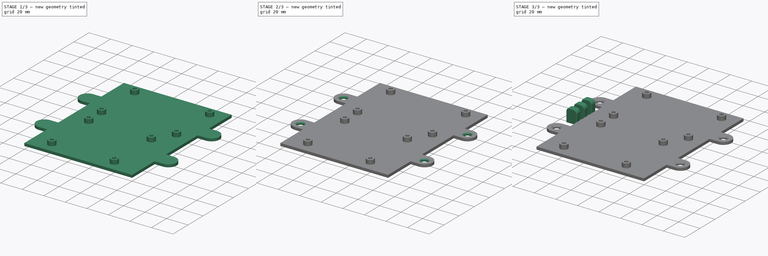
[diagram: build sequence overview — one tinted view per stage of 3, left to right]
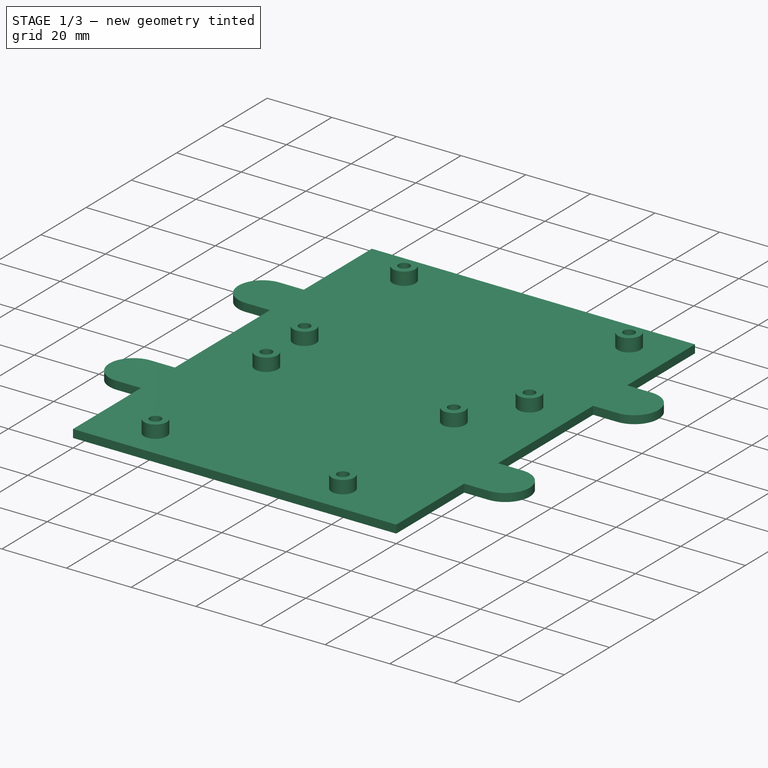
[diagram: stage 1 of 3 — iso view after this stage's code; geometry added in this stage tinted green]
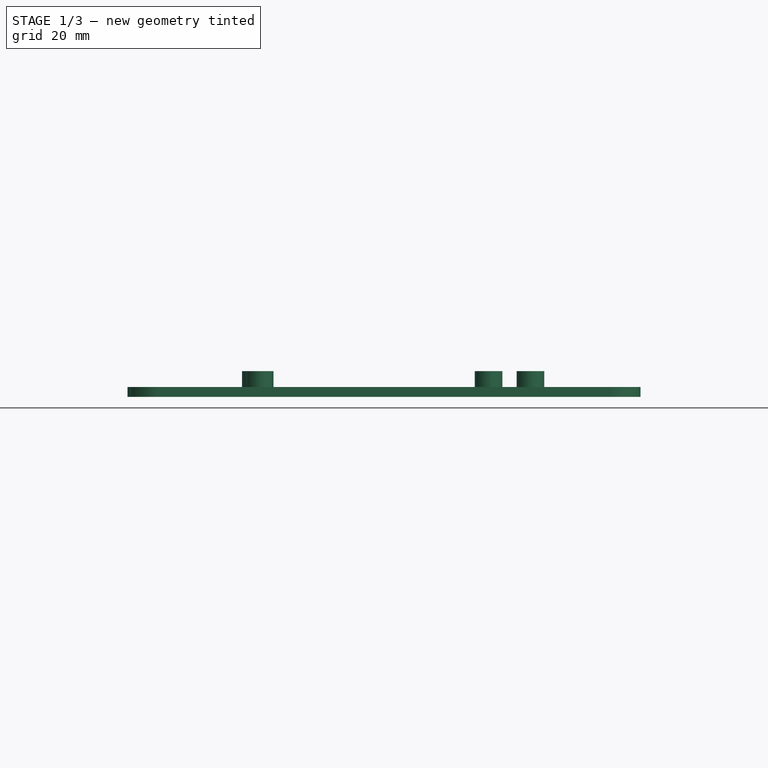
[diagram: stage 1 of 3 — front view after this stage's code; geometry added in this stage tinted green]
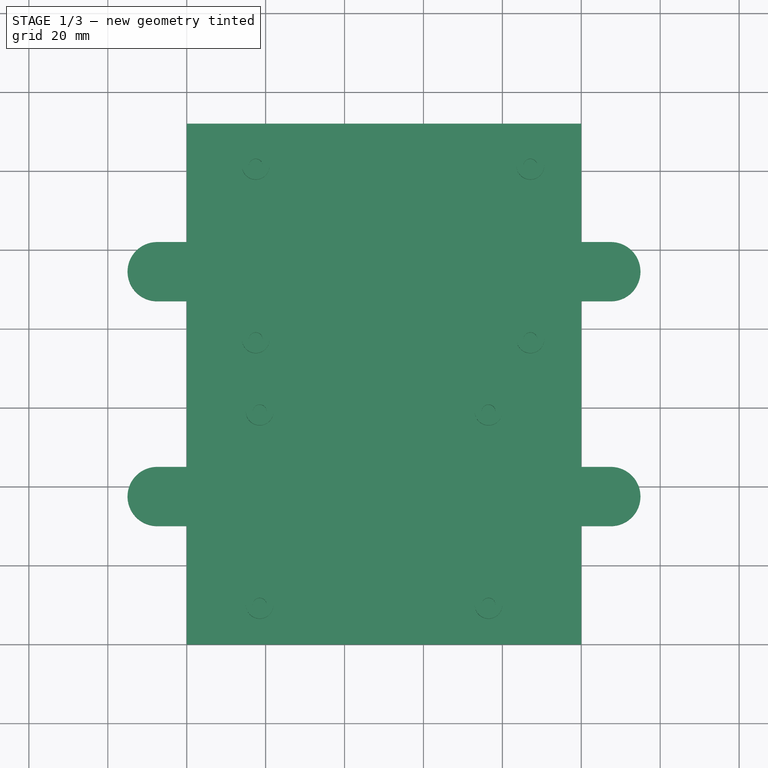
[diagram: stage 1 of 3 — top view after this stage's code; geometry added in this stage tinted green]
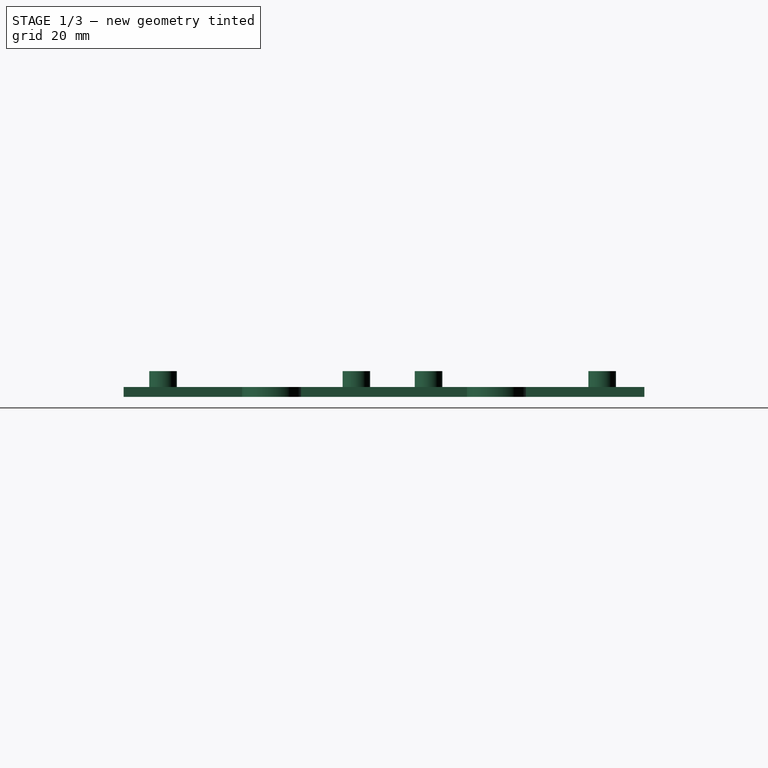
[diagram: stage 1 of 3 — right view after this stage's code; geometry added in this stage tinted green]
FCSTD DOCUMENT  (FreeCAD 0.20R29177 +426 (Git))
Label: Bottom_Plate
License: All rights reserved
LicenseURL: http://en.wikipedia.org/wiki/All_rights_reserved
objects: Sketcher::SketchObject×6, PartDesign::Pad×4, PartDesign::Fillet×2, PartDesign::Hole×1, PartDesign::Chamfer×1, PartDesign::Body×1
note: 23 computed .brp shape members not serialized (recipe doc carries the construction recipe); baked Part::Feature solids carry a one-line shape summary decoded from their .brp

FEATURE [Sketcher::SketchObject] Sketch  label="Mount_Holes"
  FullyConstrained = true
  MapMode = 5
  Placement = pos=(0,0,4) rot=(0,0,1;0rad)
  expr: Constraints[10] = .Constraints.raspi_mount_length
  expr: Constraints[26] = .Constraints.relay_mount_width
  expr: Constraints[27] = .Constraints.relay_mount_length
  expr: Constraints[37] = .Constraints.mount_hole_id
  expr: Constraints[4] = Constraints[2]
  expr: Constraints[9] = .Constraints.raspi_mount_width
  sketch-geometry (16):
    g0: Circle CenterX=76.5 CenterY=8 CenterZ=0 NormalX=0 NormalY=0 NormalZ=1 AngleXU=0 Radius=5
    g1: Circle CenterX=18.5 CenterY=8 CenterZ=0 NormalX=0 NormalY=0 NormalZ=1 AngleXU=0 Radius=5
    g2: Circle CenterX=76.5 CenterY=57 CenterZ=0 NormalX=0 NormalY=0 NormalZ=1 AngleXU=0 Radius=5
    g3: Circle CenterX=18.5 CenterY=57 CenterZ=0 NormalX=0 NormalY=0 NormalZ=1 AngleXU=0 Radius=5
    g4: Circle CenterX=18.5 CenterY=57 CenterZ=0 NormalX=0 NormalY=0 NormalZ=1 AngleXU=0 Radius=1.75
    g5: Circle CenterX=76.5 CenterY=57 CenterZ=0 NormalX=0 NormalY=0 NormalZ=1 AngleXU=0 Radius=1.75
    g6: Circle CenterX=76.5 CenterY=8 CenterZ=0 NormalX=0 NormalY=0 NormalZ=1 AngleXU=0 Radius=1.75
    g7: Circle CenterX=18.5 CenterY=8 CenterZ=0 NormalX=0 NormalY=0 NormalZ=1 AngleXU=0 Radius=1.75
    g8: Circle CenterX=17.5 CenterY=124.7 CenterZ=0 NormalX=0 NormalY=0 NormalZ=1 AngleXU=0 Radius=5
    g9: Circle CenterX=87.1 CenterY=124.7 CenterZ=0 NormalX=0 NormalY=0 NormalZ=1 AngleXU=0 Radius=5
    g10: Circle CenterX=87.1 CenterY=124.7 CenterZ=0 NormalX=0 NormalY=0 NormalZ=1 AngleXU=0 Radius=1.75
    g11: Circle CenterX=17.5 CenterY=75.3 CenterZ=0 NormalX=0 NormalY=0 NormalZ=1 AngleXU=0 Radius=5
    g12: Circle CenterX=17.5 CenterY=75.3 CenterZ=0 NormalX=0 NormalY=0 NormalZ=1 AngleXU=0 Radius=1.75
    g13: Circle CenterX=87.1 CenterY=75.3 CenterZ=0 NormalX=0 NormalY=0 NormalZ=1 AngleXU=0 Radius=5
    g14: Circle CenterX=87.1 CenterY=75.3 CenterZ=0 NormalX=0 NormalY=0 NormalZ=1 AngleXU=0 Radius=1.75
    g15: Circle CenterX=17.5 CenterY=124.7 CenterZ=0 NormalX=0 NormalY=0 NormalZ=1 AngleXU=0 Radius=1.75
  constraints (40):
    c: Diameter(g0) = 10  'mount_hole_od'
    c: DistanceX(g0) = 76.5  'mount_hole_right_offset'
    c: DistanceY(g0) = 8  'mount_hole_bottom_offset'
    c: Equal(g0,g1) = 10  'mount_hole_od'
    c: DistanceY(g1) = 8
    c: DistanceX(g1,g0) = 58  'raspi_mount_length'
    c: Equal(g0,g2) = 10  'mount_hole_od'
    c: Equal(g2,g3) = 10  'mount_hole_od'
    c: DistanceY(g1,g3) = 49  'raspi_mount_width'
    c: DistanceY(g0,g2) = 49
    c: DistanceX(g3,g2) = 58
    c: DistanceX(g0,g2) = 0  'raspi_hole_align'
    c: Coincident(g4,g3)
    c: Coincident(g5,g2)
    c: Coincident(g6,g0)
    c: Coincident(g7,g1)
    c: Equal(g4,g5)
    c: Equal(g4,g6)
    c: Equal(g4,g7)
    c: Diameter(g4) = 3.5  'mount_hole_id'
    c: Equal(g0,g13) = 10  'mount_hole_od'
    c: Equal(g13,g11) = 10  'mount_hole_od'
    c: DistanceX(g11,g13) = 69.6  'relay_mount_length'
    c: Equal(g13,g9) = 10  'mount_hole_od'
    c: Equal(g9,g8) = 10  'mount_hole_od'
    c: DistanceY(g11,g8) = 49.4  'relay_mount_width'
    c: DistanceY(g13,g9) = 49.4
    c: DistanceX(g8,g9) = 69.6
    c: DistanceX(g13,g9) = 0  'raspi_hole_align'
    c: Coincident(g10,g9)
    c: Coincident(g14,g13)
    c: Coincident(g12,g11)
    c: DistanceX(g3,g11) = -1  'pcb_align'
    c: DistanceY(g3,g11) = 18.3  'pcb_vertical_align'
    c: DistanceY(g11,g13) = 0  'relay_mount_align'
    c: Equal(g10,g12)
    c: Equal(g10,g14)
    c: Diameter(g10) = 3.5
    c: Equal(g10,g15) = 3.5
    c: Coincident(g15,g8)
FEATURE [Sketcher::SketchObject] Sketch001  label="Base_Sketch"
  FullyConstrained = true
  MapMode = 5
  Support = -> [XY_Plane]
  sketch-geometry (4):
    g0: LineSegment StartX=0 StartY=0 StartZ=0 EndX=100 EndY=0 EndZ=0
    g1: LineSegment StartX=100 StartY=0 StartZ=0 EndX=100 EndY=132 EndZ=0
    g2: LineSegment StartX=100 StartY=132 StartZ=0 EndX=0 EndY=132 EndZ=0
    g3: LineSegment StartX=0 StartY=132 StartZ=0 EndX=0 EndY=0 EndZ=0
  constraints (11):
    c: Coincident(g0,g1)
    c: Coincident(g1,g2)
    c: Coincident(g2,g3)
    c: Coincident(g3,g0)
    c: Horizontal(g0)
    c: Horizontal(g2)
    c: Vertical(g1)
    c: Vertical(g3)
    c: Coincident(g0,g-1)
    c: DistanceX(g2,g2) = 100  'Width'
    c: DistanceY(g3,g3) = 132  'Length'
FEATURE [PartDesign::Pad] Pad  label="Base"
  Direction = (0,0,1)
  Length = 2.5
  Length2 = 10
  Profile = -> Sketch001
  ReferenceAxis = -> Sketch001 [N_Axis]
  Type = 0
FEATURE [Sketcher::SketchObject] Sketch002  label="PCB_Mount_Sketch"
  FullyConstrained = true
  MapMode = 5
  Placement = pos=(0,0,2.5) rot=(0,0,1;0rad)
  Support = -> [Pad]
  expr: .Constraints.raspi_right_offset = <<Base_Sketch>>.Constraints.Width - 23.5mm
  sketch-geometry (16):
    g0: Circle CenterX=76.5 CenterY=10 CenterZ=0 NormalX=0 NormalY=0 NormalZ=1 AngleXU=0 Radius=3.5
    g1: Circle CenterX=18.5 CenterY=10 CenterZ=0 NormalX=0 NormalY=0 NormalZ=1 AngleXU=0 Radius=3.5
    g2: Circle CenterX=18.5 CenterY=59 CenterZ=0 NormalX=0 NormalY=0 NormalZ=1 AngleXU=0 Radius=3.5
    g3: Circle CenterX=76.5 CenterY=59 CenterZ=0 NormalX=0 NormalY=0 NormalZ=1 AngleXU=0 Radius=3.5
    g4: Circle CenterX=87.1 CenterY=77.3 CenterZ=0 NormalX=0 NormalY=0 NormalZ=1 AngleXU=0 Radius=3.5
    g5: Circle CenterX=17.5 CenterY=77.3 CenterZ=0 NormalX=0 NormalY=0 NormalZ=1 AngleXU=0 Radius=3.5
    g6: Circle CenterX=17.5 CenterY=121.3 CenterZ=0 NormalX=0 NormalY=0 NormalZ=1 AngleXU=0 Radius=3.5
    g7: Circle CenterX=87.1 CenterY=121.3 CenterZ=0 NormalX=0 NormalY=0 NormalZ=1 AngleXU=0 Radius=3.5
    g8: Circle CenterX=17.5 CenterY=121.3 CenterZ=0 NormalX=0 NormalY=0 NormalZ=1 AngleXU=0 Radius=1.75
    g9: Circle CenterX=87.1 CenterY=121.3 CenterZ=0 NormalX=0 NormalY=0 NormalZ=1 AngleXU=0 Radius=1.75
    g10: Circle CenterX=17.5 CenterY=77.3 CenterZ=0 NormalX=0 NormalY=0 NormalZ=1 AngleXU=0 Radius=1.75
    g11: Circle CenterX=87.1 CenterY=77.3 CenterZ=0 NormalX=0 NormalY=0 NormalZ=1 AngleXU=0 Radius=1.75
    g12: Circle CenterX=18.5 CenterY=59 CenterZ=0 NormalX=0 NormalY=0 NormalZ=1 AngleXU=0 Radius=1.75
    g13: Circle CenterX=76.5 CenterY=59 CenterZ=0 NormalX=0 NormalY=0 NormalZ=1 AngleXU=0 Radius=1.75
    g14: Circle CenterX=18.5 CenterY=10 CenterZ=0 NormalX=0 NormalY=0 NormalZ=1 AngleXU=0 Radius=1.75
    g15: Circle CenterX=76.5 CenterY=10 CenterZ=0 NormalX=0 NormalY=0 NormalZ=1 AngleXU=0 Radius=1.75
  constraints (40):
    c: Equal(g6,g7)
    c: Equal(g7,g5)
    c: Equal(g5,g4)
    c: Equal(g4,g2)
    c: Equal(g2,g3)
    c: Equal(g3,g1)
    c: Equal(g1,g0)
    c: Diameter(g6) = 7  'od'
    c: Coincident(g8,g6)
    c: Coincident(g9,g7)
    c: Coincident(g10,g5)
    c: Coincident(g11,g4)
    c: Coincident(g12,g2)
    c: Coincident(g13,g3)
    c: Coincident(g14,g1)
    c: Coincident(g15,g0)
    c: Equal(g8,g9)
    c: Equal(g9,g10)
    c: Equal(g10,g11)
    c: Equal(g11,g12)
    c: Equal(g12,g13)
    c: Equal(g13,g14)
    c: Equal(g14,g15)
    c: Diameter(g8) = 3.5  'id'
    c: DistanceX(g-1,g0) = 76.5  'raspi_right_offset'
    c: DistanceX(g1,g0) = 58  'raspi_width'
    c: DistanceX(g3,g0) = 0
    c: DistanceX(g2,g1) = 0
    c: DistanceX(g5,g2) = 1  'pcb_left_hole_align'
    c: DistanceY(g0,g1) = 0
    c: DistanceY(g2,g3) = 0
    c: DistanceY(g4,g5) = 0
    c: DistanceY(g7,g6) = 0
    c: DistanceX(g6,g5) = 0
    c: DistanceX(g7,g4) = 0
    c: DistanceY(g2,g5) = 18.3  'pcb_vert_align'
    c: DistanceY(g5,g6) = 44  'relay_length'
    c: DistanceX(g5,g4) = 69.6  'relay_width'
    c: DistanceY(g1,g2) = 49  'raspi_length'
    c: DistanceY(g-1,g1) = 10  'raspi_bottom_offset'
FEATURE [PartDesign::Pad] Pad001  label="PCB_Mount"
  BaseFeature = -> Pad
  Direction = (0,0,1)
  Length = 4
  Length2 = 10
  Profile = -> Sketch002
  ReferenceAxis = -> Sketch002 [N_Axis]
  Type = 0
FEATURE [Sketcher::SketchObject] Sketch003  label="Wall_Mount_Sketch"
  FullyConstrained = true
  MapMode = 5
  Support = -> [XY_Plane]
  expr: .Constraints.tab_offset = .Constraints.tab_diam * 2
  expr: .Constraints.tab_rad = .Constraints.tab_diam / 2
  expr: Constraints[37] = <<Base_Sketch>>.Constraints.Width
  expr: Constraints[39] = <<Base_Sketch>>.Constraints.Length - .Constraints.tab_offset
  expr: Constraints[51] = .Constraints.tab_rad
  sketch-geometry (16):
    g0: LineSegment StartX=-7.5 StartY=102 StartZ=0 EndX=0 EndY=102 EndZ=0
    g1: LineSegment StartX=0 StartY=102 StartZ=0 EndX=0 EndY=87 EndZ=0
    g2: LineSegment StartX=0 StartY=87 StartZ=0 EndX=-7.5 EndY=87 EndZ=0
    g3: LineSegment StartX=-7.5 StartY=45 StartZ=0 EndX=0 EndY=45 EndZ=0
    g4: LineSegment StartX=0 StartY=45 StartZ=0 EndX=0 EndY=30 EndZ=0
    g5: LineSegment StartX=0 StartY=30 StartZ=0 EndX=-7.5 EndY=30 EndZ=0
    g6: LineSegment StartX=100 StartY=102 StartZ=0 EndX=107.5 EndY=102 EndZ=0
    g7: LineSegment StartX=107.5 StartY=87 StartZ=0 EndX=100 EndY=87 EndZ=0
    g8: LineSegment StartX=100 StartY=87 StartZ=0 EndX=100 EndY=102 EndZ=0
    g9: LineSegment StartX=100 StartY=45 StartZ=0 EndX=107.5 EndY=45 EndZ=0
    g10: LineSegment StartX=107.5 StartY=30 StartZ=0 EndX=100 EndY=30 EndZ=0
    g11: LineSegment StartX=100 StartY=30 StartZ=0 EndX=100 EndY=45 EndZ=0
    g12: ArcOfCircle CenterX=-7.50002 CenterY=94.5 CenterZ=0 NormalX=0 NormalY=0 NormalZ=1 AngleXU=0 Radius=7.5 StartAngle=1.57079 EndAngle=4.71239
    g13: ArcOfCircle CenterX=107.5 CenterY=94.5 CenterZ=0 NormalX=0 NormalY=0 NormalZ=1 AngleXU=0 Radius=7.5 StartAngle=4.71239 EndAngle=7.85398
    g14: ArcOfCircle CenterX=107.5 CenterY=37.5 CenterZ=0 NormalX=0 NormalY=0 NormalZ=1 AngleXU=0 Radius=7.5 StartAngle=4.71239 EndAngle=7.85398
    g15: ArcOfCircle CenterX=-7.50002 CenterY=37.5 CenterZ=0 NormalX=0 NormalY=0 NormalZ=1 AngleXU=0 Radius=7.5 StartAngle=1.57079 EndAngle=4.71239
  constraints (52):
    c: Coincident(g0,g1)
    c: Coincident(g1,g2)
    c: Horizontal(g0)
    c: Horizontal(g2)
    c: Vertical(g1)
    c: Coincident(g3,g4)
    c: Coincident(g4,g5)
    c: Horizontal(g3)
    c: Horizontal(g5)
    c: Vertical(g4)
    c: Coincident(g7,g8)
    c: Coincident(g8,g6)
    c: Horizontal(g6)
    c: Horizontal(g7)
    c: Vertical(g8)
    c: Coincident(g10,g11)
    c: Coincident(g11,g9)
    c: Horizontal(g9)
    c: Horizontal(g10)
    c: Vertical(g11)
    c: Equal(g0,g2)
    c: Equal(g2,g6)
    c: Equal(g6,g7)
    c: Equal(g7,g3)
    c: Equal(g3,g5)
    c: Equal(g5,g9)
    c: Equal(g9,g10)
    c: Equal(g1,g8)
    c: Equal(g8,g4)
    c: Equal(g4,g11)
    c: DistanceY(g1,g1) = 15  'tab_diam'
    c: DistanceX(g2,g2) = 7.5  'tab_rad'
    c: DistanceX(g3,g1) = 0
    c: DistanceX(g9,g7) = 0
    c: DistanceY(g7,g1) = 0
    c: DistanceY(g3,g9) = 0
    c: DistanceX(g4,g-1) = 0
    c: DistanceX(g-1,g10) = 100
    c: DistanceY(g-1,g4) = 30  'tab_offset'
    c: DistanceY(g-1,g0) = 102
    c: Coincident(g12,g0)
    c: Coincident(g12,g2)
    c: Coincident(g13,g6)
    c: Coincident(g13,g7)
    c: Coincident(g14,g9)
    c: Coincident(g14,g10)
    c: Coincident(g15,g3)
    c: Coincident(g15,g5)
    c: Equal(g12,g13)
    c: Equal(g13,g15)
    c: Equal(g15,g14)
    c: Radius(g12) = 7.5
FEATURE [PartDesign::Pad] Pad002  label="Wall_Mount"
  BaseFeature = -> Pad001
  Direction = (0,0,1)
  Length = 2.5
  Length2 = 10
  Profile = -> Sketch003
  ReferenceAxis = -> Sketch003 [N_Axis]
  Type = 0
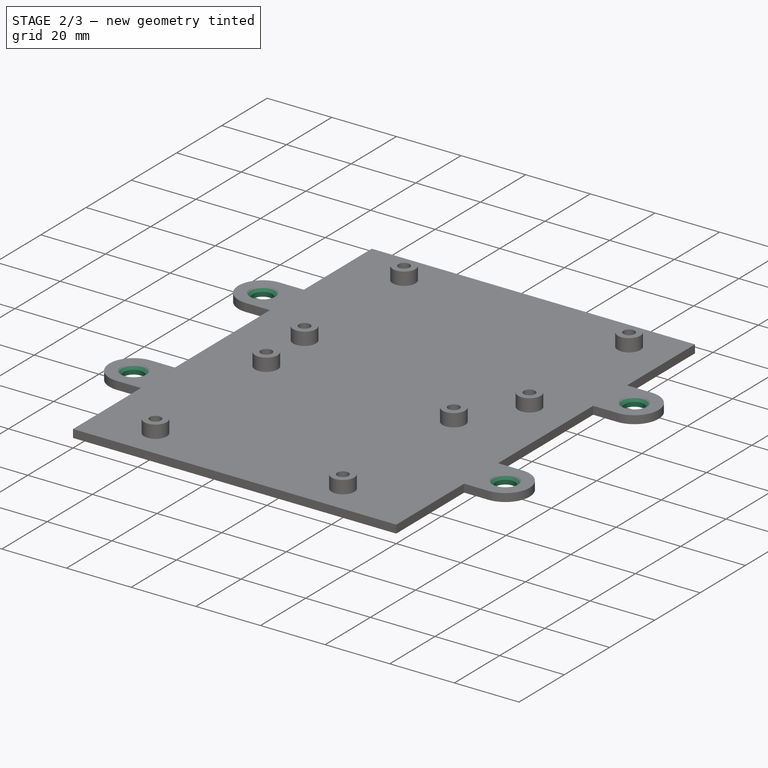
[diagram: stage 2 of 3 — iso view after this stage's code; geometry added in this stage tinted green]
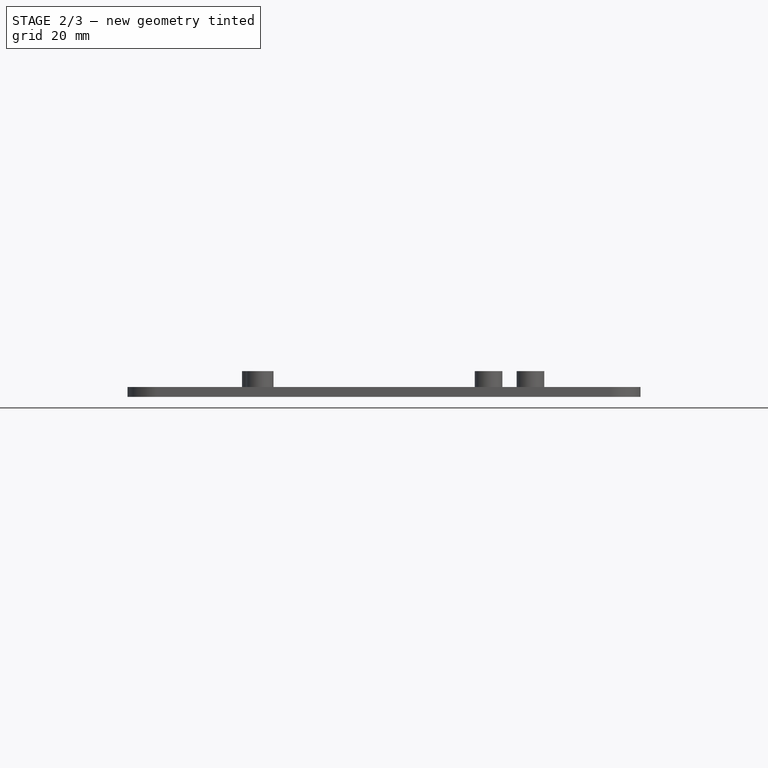
[diagram: stage 2 of 3 — front view after this stage's code; geometry added in this stage tinted green]
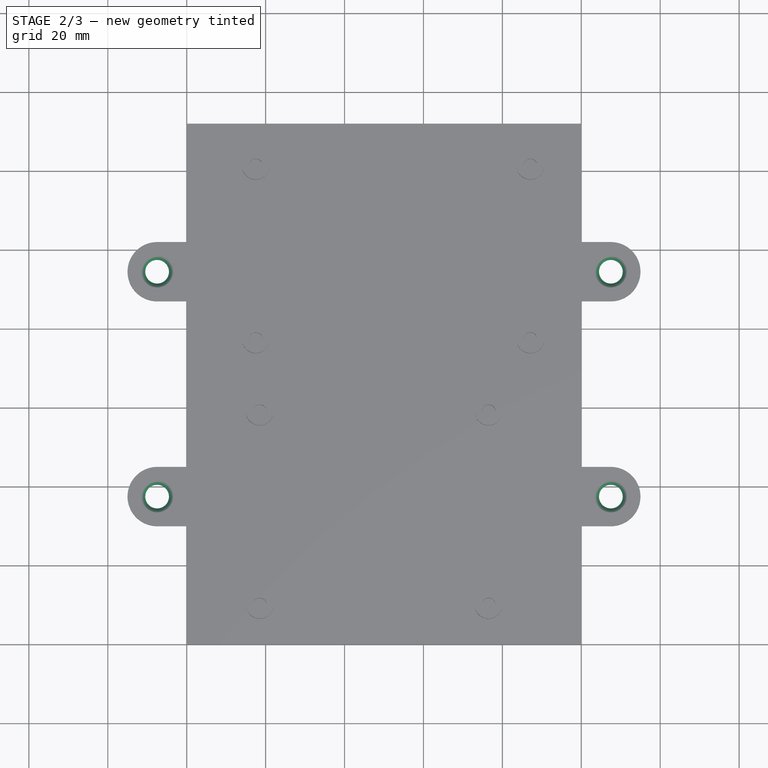
[diagram: stage 2 of 3 — top view after this stage's code; geometry added in this stage tinted green]
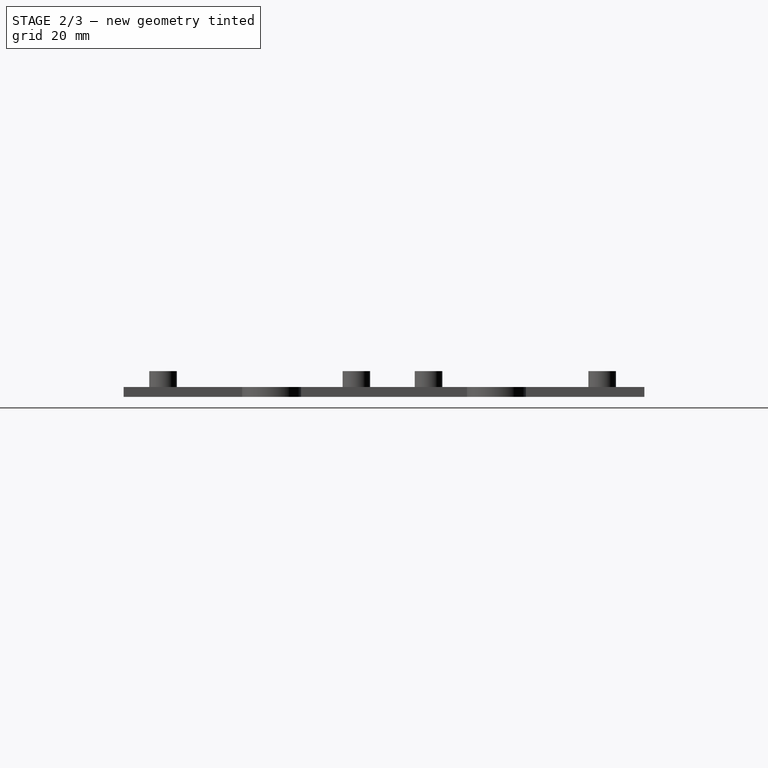
[diagram: stage 2 of 3 — right view after this stage's code; geometry added in this stage tinted green]
FEATURE [Sketcher::SketchObject] Sketch004
  FullyConstrained = true
  MapMode = 5
  Placement = pos=(0,0,2.5) rot=(0,0,1;0rad)
  Support = -> [Pad002]
  expr: Constraints[10] = <<Base_Sketch>>.Constraints.Length - <<Wall_Mount_Sketch>>.Constraints.tab_offset - <<Wall_Mount_Sketch>>.Constraints.tab_rad
  expr: Constraints[11] = <<Base_Sketch>>.Constraints.Width + <<Wall_Mount_Sketch>>.Constraints.tab_rad
  expr: Constraints[8] = <<Wall_Mount_Sketch>>.Constraints.tab_offset + <<Wall_Mount_Sketch>>.Constraints.tab_rad
  expr: Constraints[9] = <<Wall_Mount_Sketch>>.Constraints.tab_rad
  sketch-geometry (4):
    g0: Circle CenterX=-7.5 CenterY=94.5 CenterZ=0 NormalX=0 NormalY=0 NormalZ=1 AngleXU=0 Radius=2.25
    g1: Circle CenterX=107.5 CenterY=94.5 CenterZ=0 NormalX=0 NormalY=0 NormalZ=1 AngleXU=0 Radius=2.25
    g2: Circle CenterX=107.5 CenterY=37.5 CenterZ=0 NormalX=0 NormalY=0 NormalZ=1 AngleXU=0 Radius=2.25
    g3: Circle CenterX=-7.5 CenterY=37.5 CenterZ=0 NormalX=0 NormalY=0 NormalZ=1 AngleXU=0 Radius=2.25
  constraints (12):
    c: Equal(g0,g1)
    c: Equal(g1,g3)
    c: Equal(g3,g2)
    c: Diameter(g0) = 4.5
    c: DistanceX(g0,g3) = 0
    c: DistanceX(g2,g1) = 0
    c: DistanceY(g0,g1) = 0
    c: DistanceY(g2,g3) = 0
    c: DistanceY(g-1,g3) = 37.5
    c: DistanceX(g3,g-1) = 7.5
    c: DistanceY(g-1,g0) = 94.5
    c: DistanceX(g-1,g2) = 107.5
FEATURE [PartDesign::Hole] Hole
  BaseFeature = -> Pad002
  CustomThreadClearance = 0
  Depth = 25
  DepthType = 0
  Diameter = 6
  DrillForDepth = false
  DrillPoint = 1
  DrillPointAngle = 118
  HoleCutCountersinkAngle = 90
  HoleCutCustomValues = false
  HoleCutDepth = 0
  HoleCutDiameter = 6.1
  HoleCutType = 0
  ModelThread = false
  Profile = -> Sketch004
  Tapered = false
  TaperedAngle = 90
  ThreadClass = 0
  ThreadDepth = 25
  ThreadDepthType = 0
  ThreadDirection = 0
  ThreadFit = 0
  ThreadSize = 0
  ThreadType = 0
  Threaded = false
  UseCustomThreadClearance = false
FEATURE [PartDesign::Chamfer] Chamfer  label="Wood_Screw_Chamfer"
  Angle = 49
  Base = -> Hole [Edge78,Edge74,Edge71,Edge68]
  BaseFeature = -> Hole
  ChamferType = 2
  FlipDirection = false
  Size = 1
  Size2 = 1
  SupportTransform = false
  UseAllEdges = false
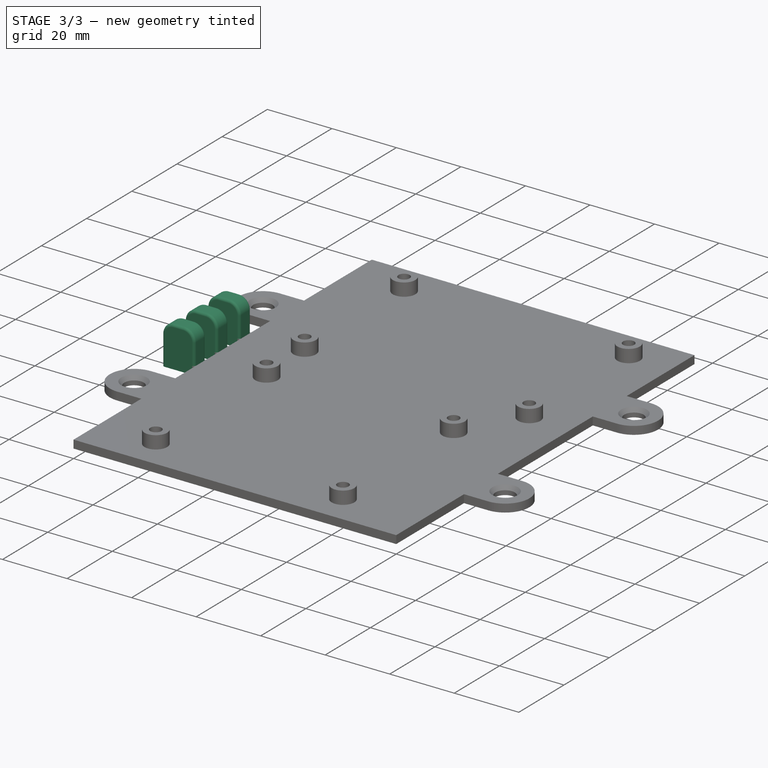
[diagram: stage 3 of 3 — iso view after this stage's code; geometry added in this stage tinted green]
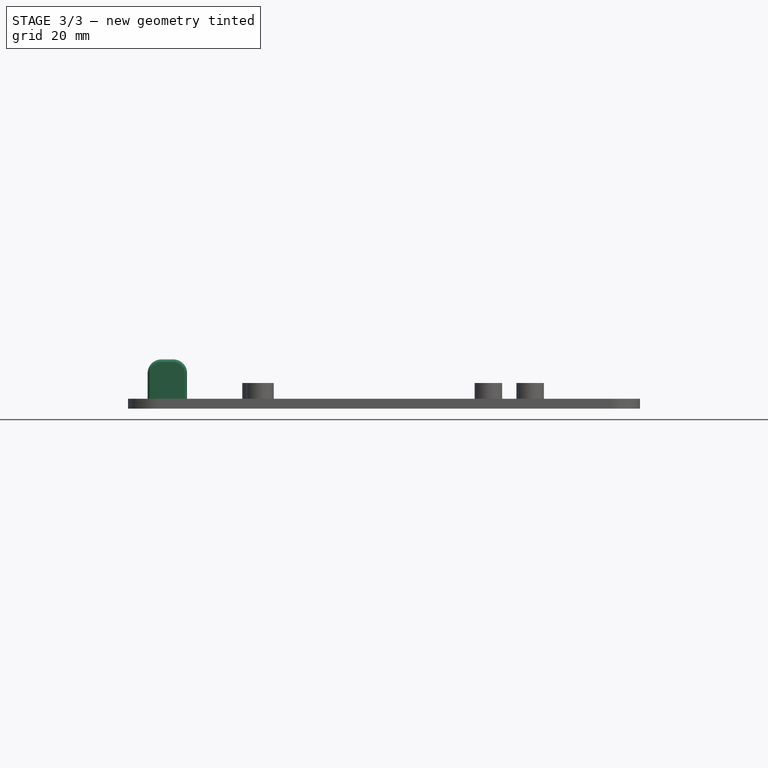
[diagram: stage 3 of 3 — front view after this stage's code; geometry added in this stage tinted green]
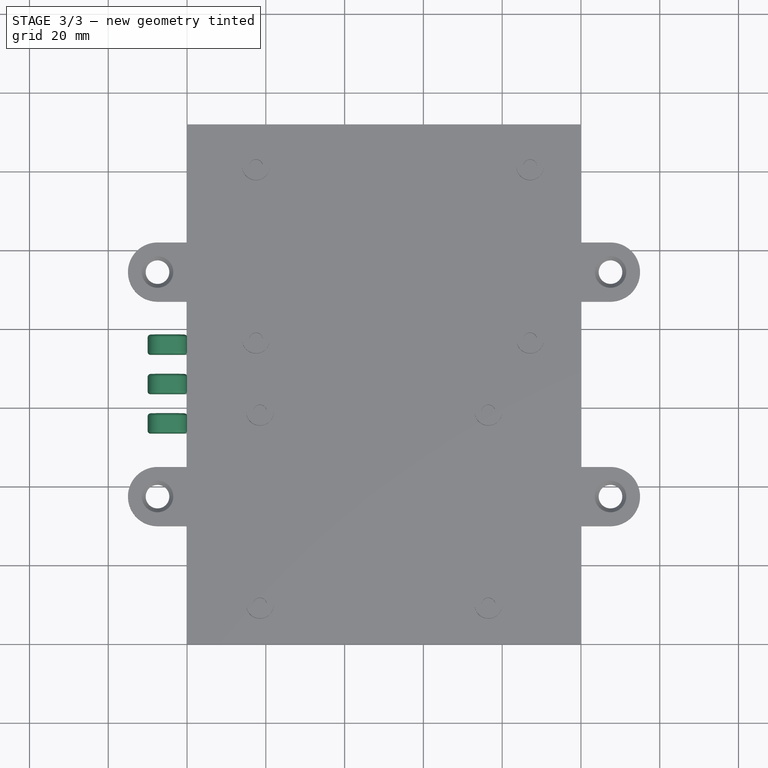
[diagram: stage 3 of 3 — top view after this stage's code; geometry added in this stage tinted green]
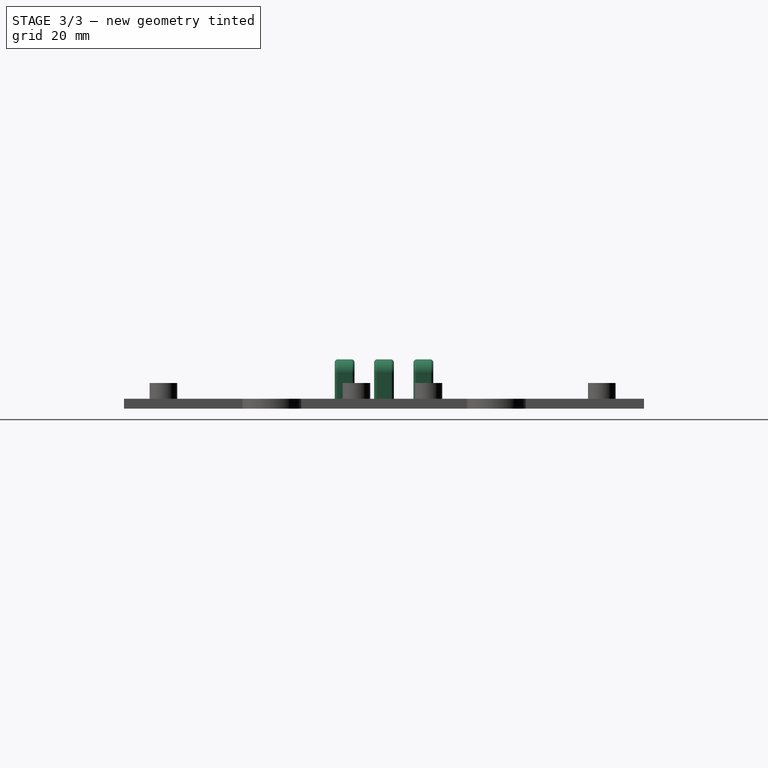
[diagram: stage 3 of 3 — right view after this stage's code; geometry added in this stage tinted green]
FEATURE [Sketcher::SketchObject] Sketch005  label="Hinge_Sketch"
  FullyConstrained = true
  MapMode = 5
  Support = -> [XY_Plane]
  expr: Constraints[32] = .Constraints.hinge_tab_width
  expr: Constraints[33] = .Constraints.hinge_tab_width
  expr: Constraints[34] = <<Base_Sketch>>.Constraints.Length / 2 - .Constraints.hinge_tab_width / 2
  sketch-geometry (12):
    g0: LineSegment StartX=-10 StartY=68.5 StartZ=0 EndX=0 EndY=68.5 EndZ=0
    g1: LineSegment StartX=0 StartY=68.5 StartZ=0 EndX=0 EndY=63.5 EndZ=0
    g2: LineSegment StartX=0 StartY=63.5 StartZ=0 EndX=-10 EndY=63.5 EndZ=0
    g3: LineSegment StartX=-10 StartY=63.5 StartZ=0 EndX=-10 EndY=68.5 EndZ=0
    g4: LineSegment StartX=-10 StartY=78.5 StartZ=0 EndX=0 EndY=78.5 EndZ=0
    g5: LineSegment StartX=-2e-16 StartY=78.5 StartZ=0 EndX=-2e-16 EndY=73.5 EndZ=0
    g6: LineSegment StartX=-2e-16 StartY=73.5 StartZ=0 EndX=-10 EndY=73.5 EndZ=0
    g7: LineSegment StartX=-10 StartY=73.5 StartZ=0 EndX=-10 EndY=78.5 EndZ=0
    g8: LineSegment StartX=-10 StartY=58.5 StartZ=0 EndX=0 EndY=58.5 EndZ=0
    g9: LineSegment StartX=0 StartY=58.5 StartZ=0 EndX=0 EndY=53.5 EndZ=0
    g10: LineSegment StartX=0 StartY=53.5 StartZ=0 EndX=-10 EndY=53.5 EndZ=0
    g11: LineSegment StartX=-10 StartY=53.5 StartZ=0 EndX=-10 EndY=58.5 EndZ=0
  constraints (36):
    c: Coincident(g0,g1)
    c: Coincident(g1,g2)
    c: Coincident(g2,g3)
    c: Coincident(g3,g0)
    c: Horizontal(g0)
    c: Horizontal(g2)
    c: Vertical(g1)
    c: Vertical(g3)
    c: Coincident(g4,g5)
    c: Coincident(g5,g6)
    c: Coincident(g6,g7)
    c: Coincident(g7,g4)
    c: Horizontal(g4)
    c: Horizontal(g6)
    c: Vertical(g5)
    c: Vertical(g7)
    c: Coincident(g8,g9)
    c: Coincident(g9,g10)
    c: Coincident(g10,g11)
    c: Coincident(g11,g8)
    c: Horizontal(g8)
    c: Horizontal(g10)
    c: Vertical(g9)
    c: Vertical(g11)
    c: Equal(g6,g0)
    c: Equal(g0,g8)
    c: Equal(g5,g1)
    c: Equal(g1,g9)
    c: DistanceY(g5,g5) = 5  'hinge_tab_width'
    c: DistanceX(g6,g6) = 10  'hinge_tab_length'
    c: DistanceX(g10,g2) = 0
    c: DistanceX(g10,g6) = 0
    c: DistanceY(g8,g2) = 5
    c: DistanceY(g0,g6) = 5
    c: DistanceY(g-1,g2) = 63.5
    c: DistanceX(g1,g-1) = 0
FEATURE [PartDesign::Pad] Pad003  label="Hinge"
  BaseFeature = -> Chamfer
  Direction = (0,0,1)
  Length = 12.5
  Length2 = 10
  Profile = -> Sketch005
  ReferenceAxis = -> Sketch005 [N_Axis]
  Type = 0
FEATURE [PartDesign::Fillet] Fillet  label="Hinge_Large_Fillet"
  Base = -> Pad003 [Edge63,Edge133,Edge126,Edge57,Edge119,Edge51]
  BaseFeature = -> Pad003
  Radius = 3.5
  SupportTransform = false
  UseAllEdges = false
FEATURE [PartDesign::Fillet] Fillet001  label="Hinge_Small_Fillet"
  Base = -> Fillet [Edge142,Edge139,Edge131,Edge121,Edge7,Edge41]
  BaseFeature = -> Fillet
  Radius = 0.75
  SupportTransform = false
  UseAllEdges = false
FEATURE [PartDesign::Body] Body
  Group = -> [Sketch001,Pad,Sketch002,Pad001,Sketch003,Pad002,Sketch004,Hole,Chamfer,Sketch005,Pad003,Fillet,Fillet001]
  Origin = -> Origin
  Tip = -> Fillet001
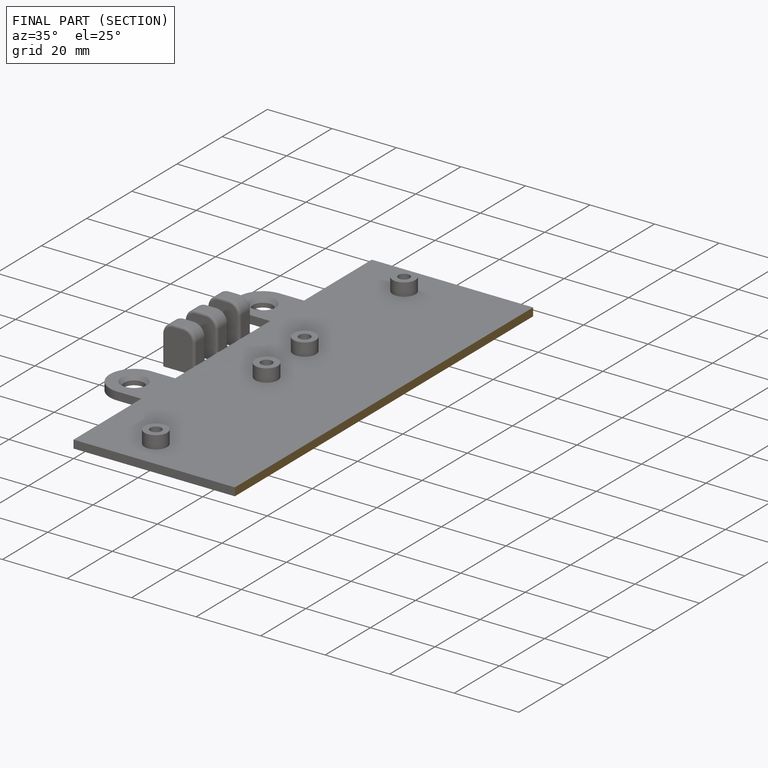
[diagram: finished part — half-section view (interior)]
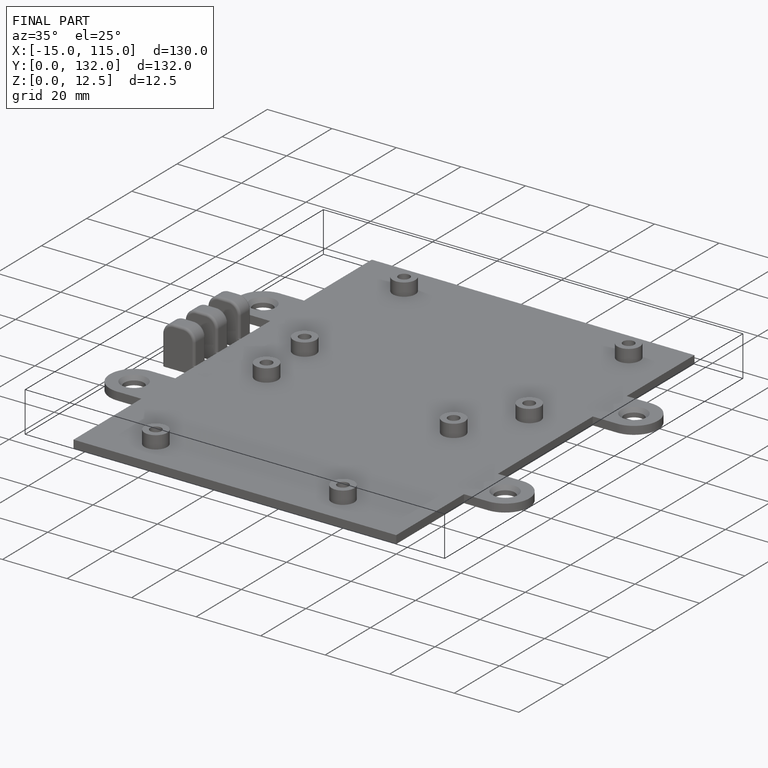
[diagram: finished part — iso view with bounding-box wireframe]
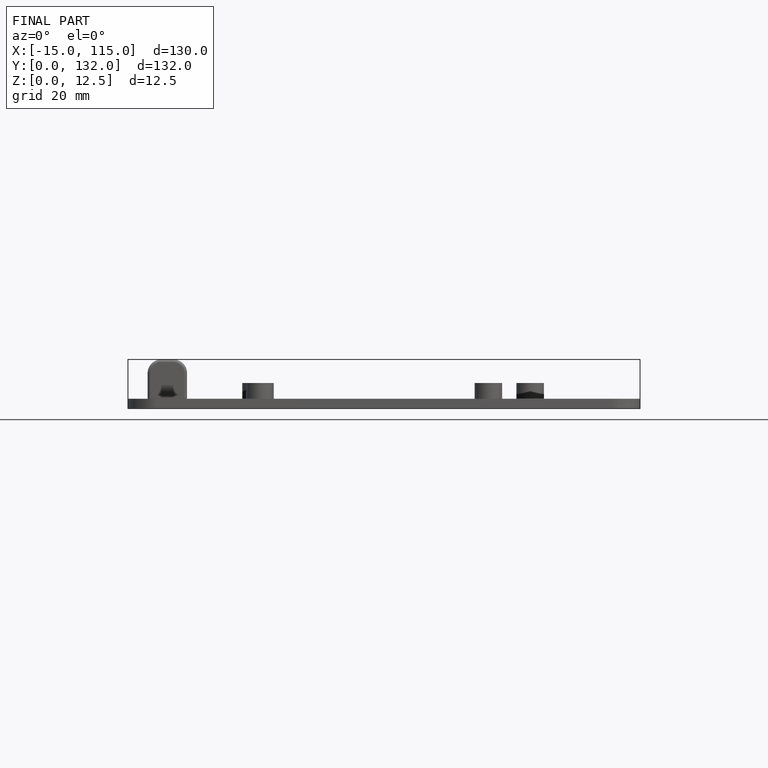
[diagram: finished part — front view with bounding-box wireframe]
